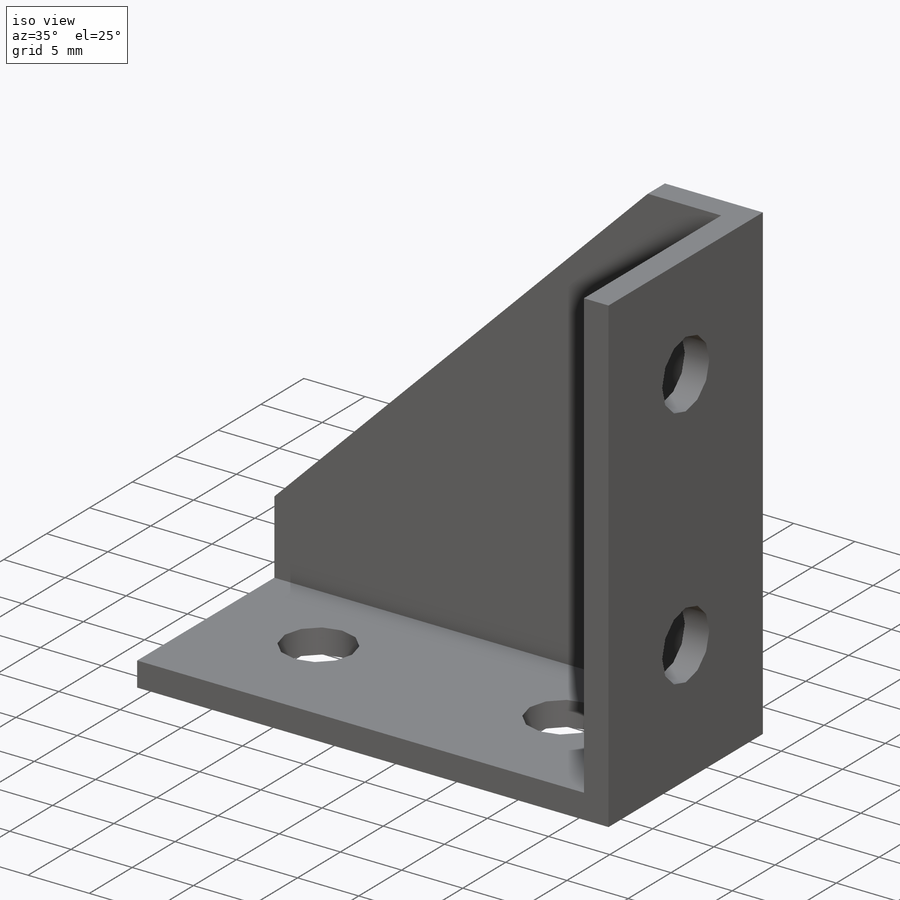
[diagram: iso view]
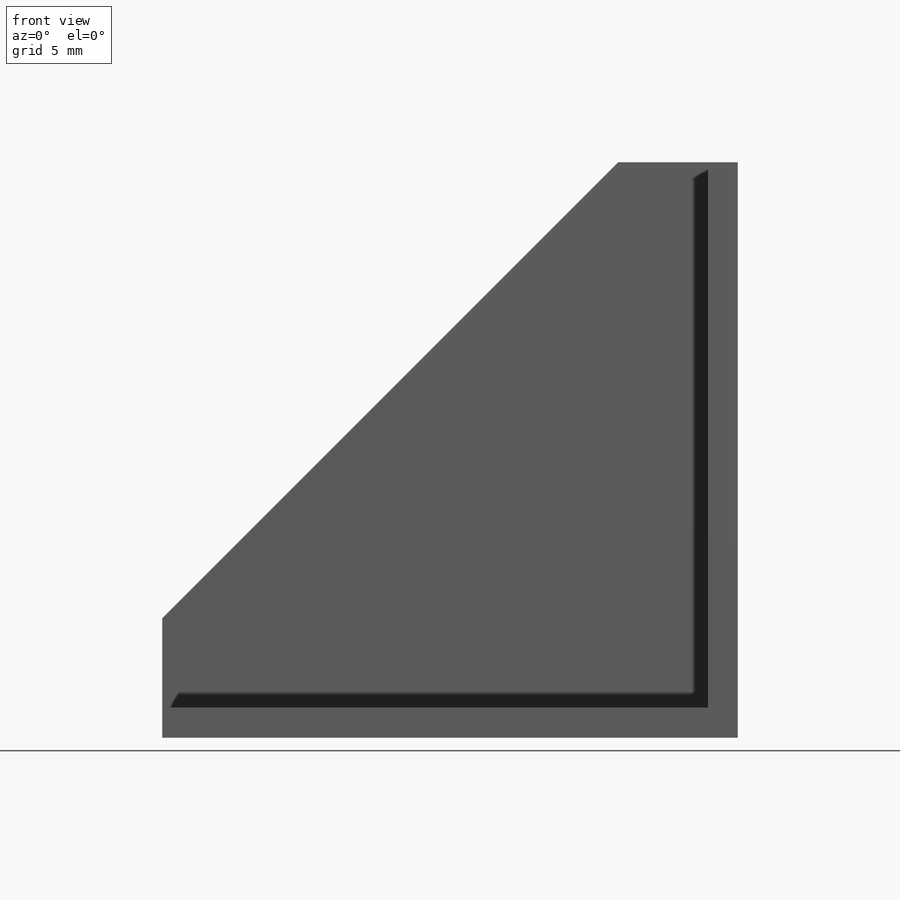
[diagram: front view]
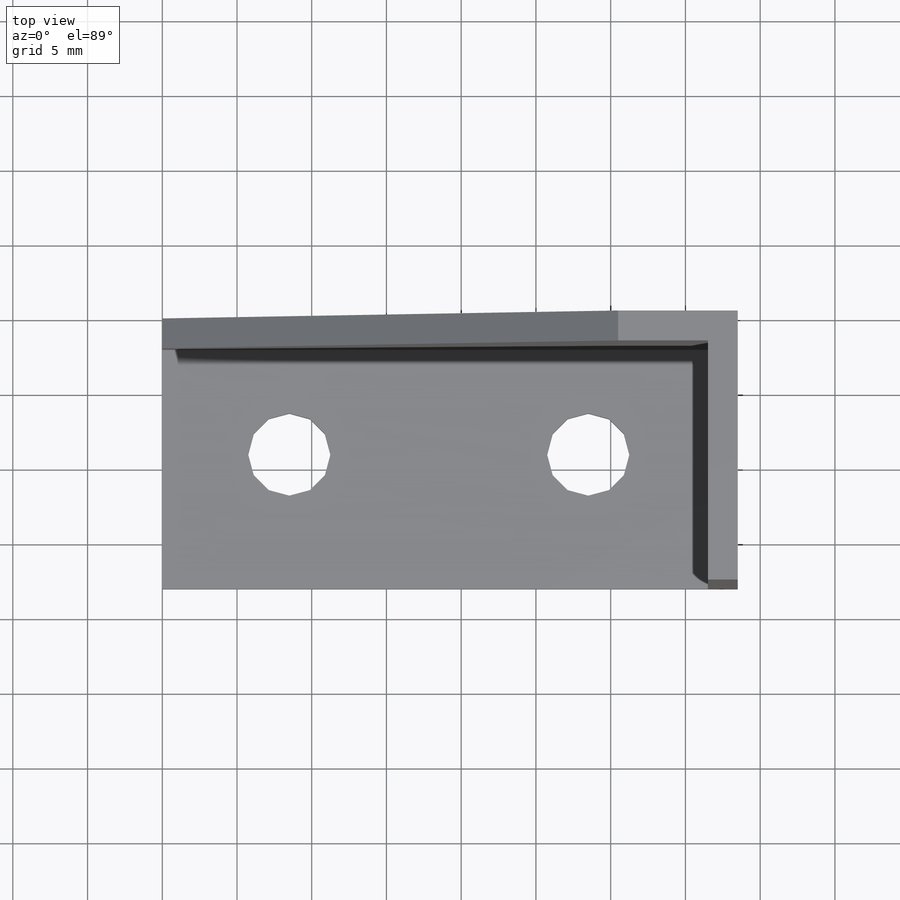
[diagram: top view]
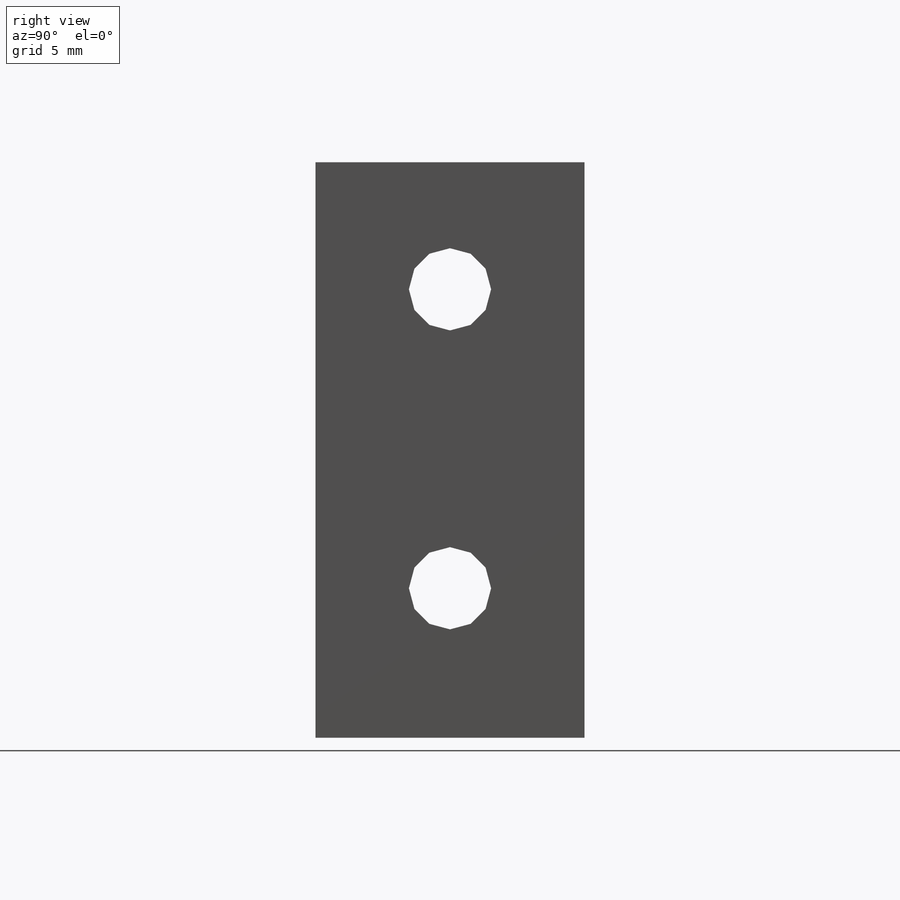
[diagram: right view]
SOLIDWORKS PART (.sldprt)
format: sldprt  version: not decoded by parser v0  size: 279,552 bytes
history: native  units: mm
features: sketch x6, plane x2, hole x2, material x1, extrude x1, cut_extrude x1 (+10 scaffold rows collapsed)
feature tree (23):
  scaffold x10  (default folders/planes/origin — collapsed)
  material  "1060 Сплав"
  plane  "Сверху"
  plane  "Справа"
  sketch  "Эскиз1"  dims[D1=~60.640652mm]
  extrude  "Бобышка-Вытянуть1"  Depth=18mm
  sketch  "Эскиз2"  dims[D1=~5.500772mm]
  cut_extrude  "Вырез-Вытянуть1"  Depth=16mm
  hole  "Отверстие с зазором M51"  [1 undecoded]
  sketch  "Эскиз5"
  sketch  "Эскиз4"  dims[hole-wizard template sketch: 59 standard entries collapsed; hole parameters kept: c18.Диаметр сквозного отверстия=5.5mm c18.Глубина сквозного отверстия=2.0mm]
  hole  "Отверстие с зазором M52"  [1 undecoded]
  sketch  "Эскиз7"
  sketch  "Эскиз6"  dims[hole-wizard template sketch: 59 standard entries collapsed; hole parameters kept: c18.Диаметр сквозного отверстия=5.5mm c18.Глубина сквозного отверстия=2.0mm]
decode coverage: 6 of 10 modeling features carry decoded parameters
note: ~ marks probable driven/reference dimensions
note: 2 parameter values undecoded
note: suppression state not decoded; provenance and decode notes live in map.json
